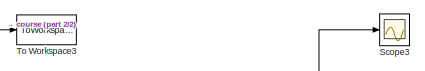
[diagram: root canvas - part 1/2, top center region]
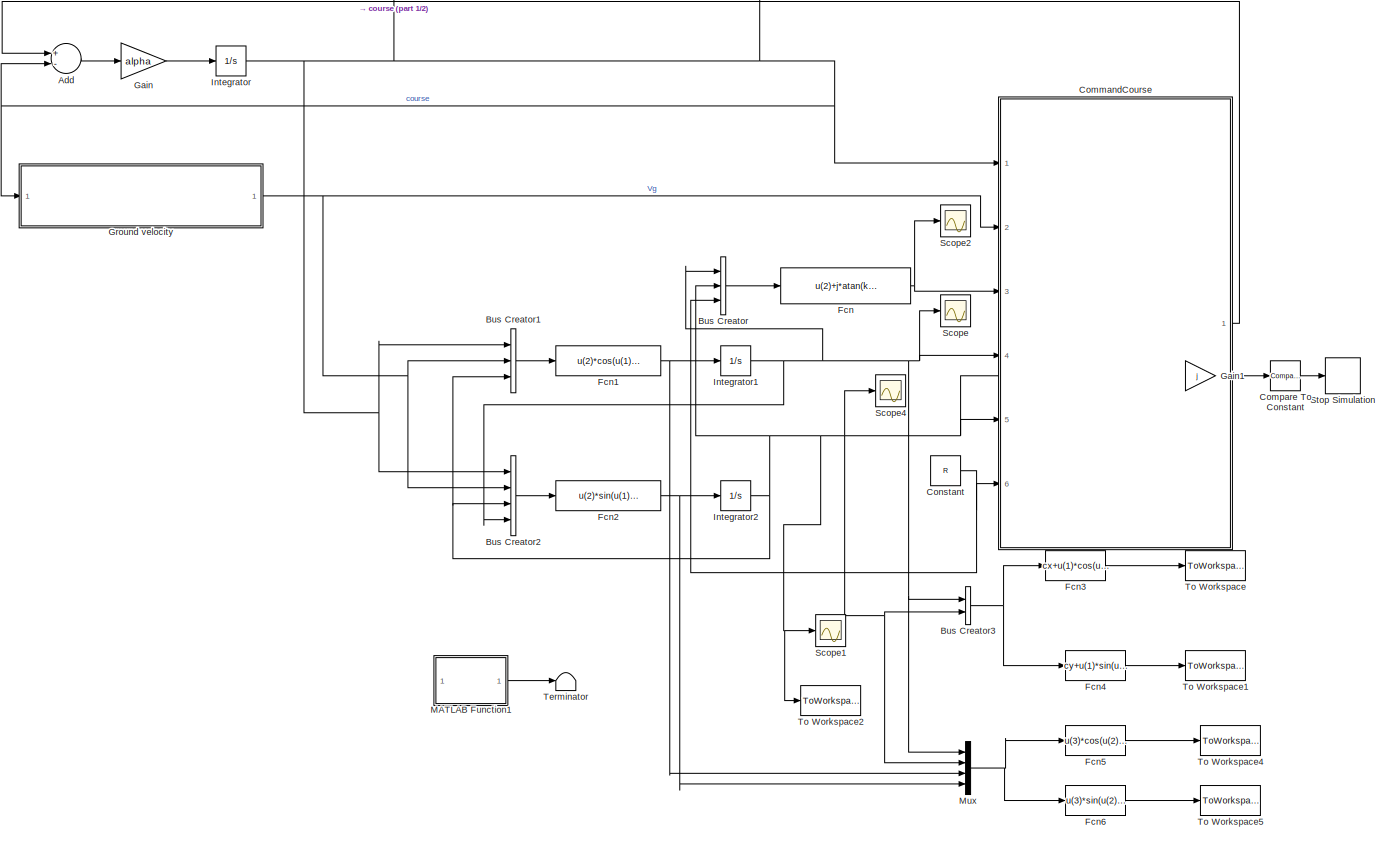
[diagram: root canvas - part 2/2, most of the canvas]
MODEL slx_efd37a24be28
KIND model
CONFIG AbsTol = auto
CONFIG FixedStep = 0.01
CONFIG MaxStep = auto
CONFIG MinStep = auto
CONFIG RelTol = 1e-4
CONFIG SampleTimeConstraint = Unconstrained
CONFIG Solver = VariableStepAuto
CONFIG SolverMode = Auto
CONFIG SolverName = VariableStepAuto
CONFIG StartTime = 0.0
CONFIG StopTime = 1000
BLOCK [Sum] Add
  InputSameDT = off
  Inputs = +-
  OutDataTypeStr = Inherit: Inherit via internal rule
  Ports = [2, 1]
  SaturateOnIntegerOverflow = off
BLOCK [BusCreator] Bus Creator
  DisplayOption = bar
  InheritFromInputs = on
  Inputs = 3
  Ports = [3, 1]
BLOCK [BusCreator] Bus Creator1
  DisplayOption = bar
  InheritFromInputs = on
  Inputs = 3
  Ports = [3, 1]
BLOCK [BusCreator] Bus Creator2
  DisplayOption = bar
  InheritFromInputs = on
  Inputs = 4
  Ports = [4, 1]
BLOCK [BusCreator] Bus Creator3
  DisplayOption = bar
  InheritFromInputs = on
  Inputs = 2
  Ports = [2, 1]
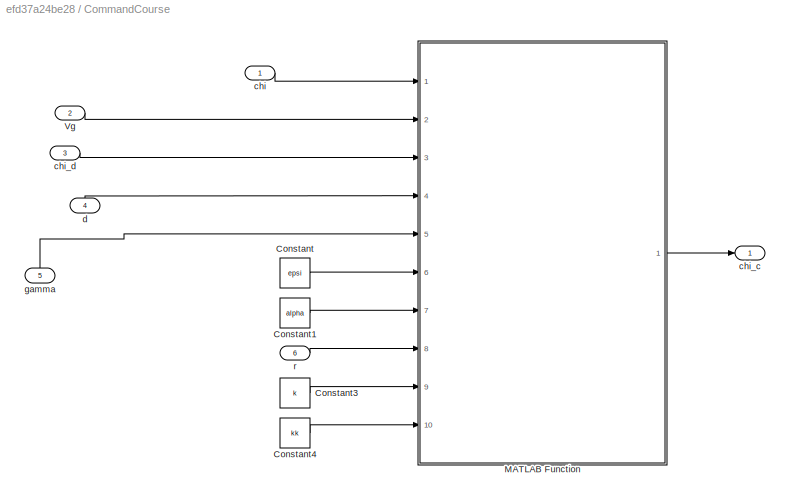
BLOCK [SubSystem] CommandCourse
  Ports = [6, 1]
  RequestExecContextInheritance = off
  Variant = off
BLOCK [Constant] CommandCourse/Constant
  Value = epsi
BLOCK [Constant] CommandCourse/Constant1
  Value = alpha
BLOCK [Constant] CommandCourse/Constant3
  Value = k
BLOCK [Constant] CommandCourse/Constant4
  Value = kk
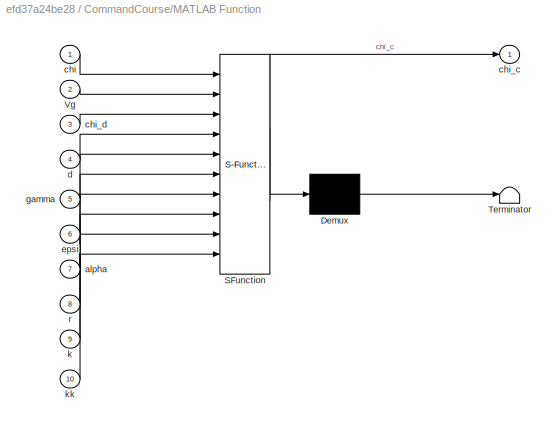
BLOCK [SubSystem] CommandCourse/MATLAB Function
  ErrorFcn = Stateflow.Translate.translate
  PermitHierarchicalResolution = ExplicitOnly
  Ports = [10, 1]
  RequestExecContextInheritance = off
  SFBlockType = MATLAB Function
  TreatAsAtomicUnit = on
  Variant = off
BLOCK [Demux] CommandCourse/MATLAB Function/ Demux 
  Outputs = 1
  Ports = [1, 1]
BLOCK [S-Function] CommandCourse/MATLAB Function/ SFunction 
  EnableBusSupport = on
  FunctionName = sf_sfun
  PortCounts = [10 2]
  Ports = [10, 2]
  SFunctionDeploymentMode = off
  Tag = Stateflow S-Function OrbitFollowing 2
BLOCK [Terminator] CommandCourse/MATLAB Function/ Terminator 
BLOCK [Inport] CommandCourse/MATLAB Function/Vg
  IconDisplay = Port number
  Port = 2
BLOCK [Inport] CommandCourse/MATLAB Function/alpha
  IconDisplay = Port number
  Port = 7
BLOCK [Inport] CommandCourse/MATLAB Function/chi
  IconDisplay = Port number
BLOCK [Outport] CommandCourse/MATLAB Function/chi_c
  IconDisplay = Port number
BLOCK [Inport] CommandCourse/MATLAB Function/chi_d
  IconDisplay = Port number
  Port = 3
BLOCK [Inport] CommandCourse/MATLAB Function/d
  IconDisplay = Port number
  Port = 4
BLOCK [Inport] CommandCourse/MATLAB Function/epsi
  IconDisplay = Port number
  Port = 6
BLOCK [Inport] CommandCourse/MATLAB Function/gamma
  IconDisplay = Port number
  Port = 5
BLOCK [Inport] CommandCourse/MATLAB Function/k
  IconDisplay = Port number
  Port = 9
BLOCK [Inport] CommandCourse/MATLAB Function/kk
  IconDisplay = Port number
  Port = 10
BLOCK [Inport] CommandCourse/MATLAB Function/r
  IconDisplay = Port number
  Port = 8
BLOCK [Inport] CommandCourse/Vg
  IconDisplay = Port number
  Port = 2
BLOCK [Inport] CommandCourse/chi
  IconDisplay = Port number
BLOCK [Outport] CommandCourse/chi_c
  IconDisplay = Port number
BLOCK [Inport] CommandCourse/chi_d
  IconDisplay = Port number
  Port = 3
BLOCK [Inport] CommandCourse/d
  IconDisplay = Port number
  Port = 4
BLOCK [Inport] CommandCourse/gamma
  IconDisplay = Port number
  Port = 5
BLOCK [Inport] CommandCourse/r 
  IconDisplay = Port number
  Port = 6
BLOCK [Reference] Compare To Constant  REF=simulink/Logic and Bit
Operations/Compare
To Constant
  Ports = [1, 1]
  SourceBlock = simulink/Logic and Bit\nOperations/Compare\nTo Constant
  SourceType = Compare To Constant
BLOCK [Constant] Constant
  Value = R
BLOCK [Fcn] Fcn
  Expr = u(2)+j*atan(k*(u(1)-u(3)))+j*pi/2
BLOCK [Fcn] Fcn1
  Expr = u(2)*cos(u(1)-u(3))
BLOCK [Fcn] Fcn2
  Expr = u(2)*sin(u(1)-u(3))/u(4)
BLOCK [Fcn] Fcn3
  Expr = cx+u(1)*cos(u(2))
BLOCK [Fcn] Fcn4
  Expr = cy+u(1)*sin(u(2))
BLOCK [Fcn] Fcn5
  Expr = u(3)*cos(u(2))-u(1)*sin(u(2))*u(4)
BLOCK [Fcn] Fcn6
  Expr = u(3)*sin(u(2))+u(1)*cos(u(2))*u(4)
BLOCK [Gain] Gain
  Gain = alpha
  OutDataTypeStr = Inherit: Inherit via internal rule
  ParamDataTypeStr = Inherit: Inherit via internal rule
  SaturateOnIntegerOverflow = off
BLOCK [Gain] Gain1
  Gain = j
  OutDataTypeStr = Inherit: Inherit via internal rule
  ParamDataTypeStr = Inherit: Inherit via internal rule
  SaturateOnIntegerOverflow = off
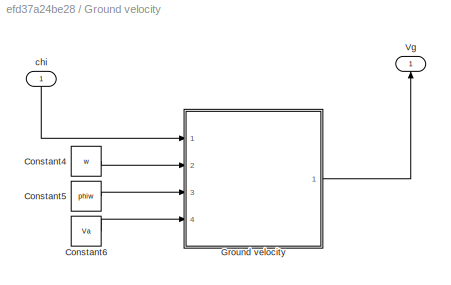
BLOCK [SubSystem] Ground velocity
  Ports = [1, 1]
  RequestExecContextInheritance = off
  Variant = off
BLOCK [Constant] Ground velocity/Constant4
  Value = w
BLOCK [Constant] Ground velocity/Constant5
  Value = phiw
BLOCK [Constant] Ground velocity/Constant6
  Value = Va
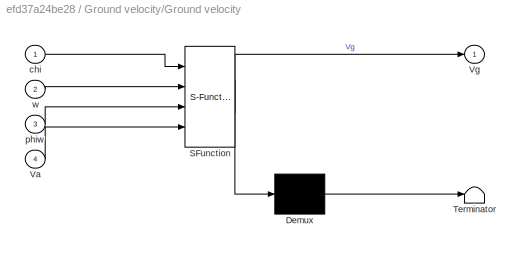
BLOCK [SubSystem] Ground velocity/Ground velocity
  ErrorFcn = Stateflow.Translate.translate
  PermitHierarchicalResolution = ExplicitOnly
  Ports = [4, 1]
  RequestExecContextInheritance = off
  SFBlockType = MATLAB Function
  TreatAsAtomicUnit = on
  Variant = off
BLOCK [Demux] Ground velocity/Ground velocity/ Demux 
  Outputs = 1
  Ports = [1, 1]
BLOCK [S-Function] Ground velocity/Ground velocity/ SFunction 
  EnableBusSupport = on
  FunctionName = sf_sfun
  PortCounts = [4 2]
  Ports = [4, 2]
  SFunctionDeploymentMode = off
  Tag = Stateflow S-Function OrbitFollowing 1
BLOCK [Terminator] Ground velocity/Ground velocity/ Terminator 
BLOCK [Inport] Ground velocity/Ground velocity/Va
  IconDisplay = Port number
  Port = 4
BLOCK [Outport] Ground velocity/Ground velocity/Vg
  IconDisplay = Port number
BLOCK [Inport] Ground velocity/Ground velocity/chi
  IconDisplay = Port number
BLOCK [Inport] Ground velocity/Ground velocity/phiw
  IconDisplay = Port number
  Port = 3
BLOCK [Inport] Ground velocity/Ground velocity/w
  IconDisplay = Port number
  Port = 2
BLOCK [Outport] Ground velocity/Vg
  IconDisplay = Port number
BLOCK [Inport] Ground velocity/chi
  IconDisplay = Port number
BLOCK [Integrator] Integrator
  InitialCondition = course_int
  Ports = [1, 1]
BLOCK [Integrator] Integrator1
  InitialCondition = d_int
  Ports = [1, 1]
BLOCK [Integrator] Integrator2
  InitialCondition = gamma_int
  Ports = [1, 1]
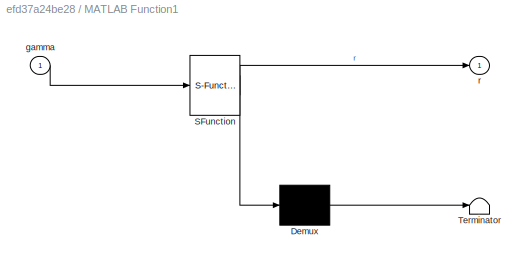
BLOCK [SubSystem] MATLAB Function1
  ErrorFcn = Stateflow.Translate.translate
  PermitHierarchicalResolution = ExplicitOnly
  Ports = [1, 1]
  RequestExecContextInheritance = off
  SFBlockType = MATLAB Function
  TreatAsAtomicUnit = on
  Variant = off
BLOCK [Demux] MATLAB Function1/ Demux 
  Outputs = 1
  Ports = [1, 1]
BLOCK [S-Function] MATLAB Function1/ SFunction 
  EnableBusSupport = on
  FunctionName = sf_sfun
  PortCounts = [1 2]
  Ports = [1, 2]
  SFunctionDeploymentMode = off
  Tag = Stateflow S-Function OrbitFollowing 3
BLOCK [Terminator] MATLAB Function1/ Terminator 
BLOCK [Inport] MATLAB Function1/gamma
  IconDisplay = Port number
BLOCK [Outport] MATLAB Function1/r
  IconDisplay = Port number
BLOCK [Mux] Mux
  DisplayOption = bar
  Ports = [4, 1]
BLOCK [Scope] Scope
  Ports = [1]
  ScopeSpecificationString = Simulink.scopes.TimeScopeBlockCfg('CurrentConfiguration', extmgr.ConfigurationSet(extmgr.Configuration('Core','General UI',true),extmgr.Configuration('Core','Source UI',true),extmgr.Configuration('Sources','WiredSimulink',true),extmgr.Configuration('Visuals','Time Domain',true,'SerializedDisplays',{struct('MinYLimReal','9.06332','MaxYLimReal','18.61545','YLabelReal','','MinYLimMag','9.06332','MaxY...<+1414ch>
BLOCK [Scope] Scope1
  Ports = [1]
  ScopeSpecificationString = Simulink.scopes.TimeScopeBlockCfg('CurrentConfiguration', extmgr.ConfigurationSet(extmgr.Configuration('Core','General UI',true),extmgr.Configuration('Core','Source UI',true),extmgr.Configuration('Sources','WiredSimulink',true,'DataLoggingVariableName','ScopeData1'),extmgr.Configuration('Visuals','Time Domain',true,'SerializedDisplays',{struct('MinYLimReal','-0.57443','MaxYLimReal','5.17547','YLab...<+1421ch>
BLOCK [Scope] Scope2
  Ports = [1]
  ScopeSpecificationString = Simulink.scopes.TimeScopeBlockCfg('CurrentConfiguration', extmgr.ConfigurationSet(extmgr.Configuration('Core','General UI',true),extmgr.Configuration('Core','Source UI',true),extmgr.Configuration('Sources','WiredSimulink',true,'DataLoggingVariableName','ScopeData1'),extmgr.Configuration('Visuals','Time Domain',true,'SerializedDisplays',{struct('MinYLimReal','1.24107','MaxYLimReal','4.32866','YLabe...<+1379ch>
BLOCK [Scope] Scope3
  Ports = [1]
  ScopeSpecificationString = Simulink.scopes.TimeScopeBlockCfg('CurrentConfiguration', extmgr.ConfigurationSet(extmgr.Configuration('Core','General UI',true),extmgr.Configuration('Core','Source UI',true),extmgr.Configuration('Sources','WiredSimulink',true,'DataLoggingVariableName','ScopeData3'),extmgr.Configuration('Visuals','Time Domain',true,'SerializedDisplays',{struct('MinYLimReal','-3.66503','MaxYLimReal','-1.67278','YLa...<+1423ch>
BLOCK [Scope] Scope4
  Ports = [1]
  ScopeSpecificationString = Simulink.scopes.TimeScopeBlockCfg('CurrentConfiguration', extmgr.ConfigurationSet(extmgr.Configuration('Core','General UI',true),extmgr.Configuration('Core','Source UI',true),extmgr.Configuration('Sources','WiredSimulink',true,'DataLoggingVariableName','ScopeData1'),extmgr.Configuration('Visuals','Time Domain',true,'SerializedDisplays',{struct('MinYLimReal','-141.64062','MaxYLimReal','18.11158','Y...<+1434ch>
BLOCK [Stop] Stop Simulation
BLOCK [Terminator] Terminator
BLOCK [ToWorkspace] To Workspace
  FixptAsFi = on
  MaxDataPoints = inf
  Ports = [1]
  SampleTime = -1
  Save2DSignal = 3-D array (concatenate along third dimension)
  SaveFormat = Timeseries
  VariableName = x
BLOCK [ToWorkspace] To Workspace1
  FixptAsFi = on
  MaxDataPoints = inf
  Ports = [1]
  SampleTime = -1
  Save2DSignal = 3-D array (concatenate along third dimension)
  SaveFormat = Timeseries
  VariableName = y
BLOCK [ToWorkspace] To Workspace2
  FixptAsFi = on
  MaxDataPoints = inf
  Ports = [1]
  SampleTime = -1
  Save2DSignal = 3-D array (concatenate along third dimension)
  SaveFormat = Timeseries
  VariableName = gamma
BLOCK [ToWorkspace] To Workspace3
  FixptAsFi = on
  MaxDataPoints = inf
  Ports = [1]
  SampleTime = -1
  Save2DSignal = 3-D array (concatenate along third dimension)
  SaveFormat = Timeseries
  VariableName = course
BLOCK [ToWorkspace] To Workspace4
  FixptAsFi = on
  MaxDataPoints = inf
  Ports = [1]
  SampleTime = -1
  Save2DSignal = 3-D array (concatenate along third dimension)
  SaveFormat = Timeseries
  VariableName = vx
BLOCK [ToWorkspace] To Workspace5
  FixptAsFi = on
  MaxDataPoints = inf
  Ports = [1]
  SampleTime = -1
  Save2DSignal = 3-D array (concatenate along third dimension)
  SaveFormat = Timeseries
  VariableName = vy
LINE Add:1 -> Gain:1
LINE Bus Creator1:1 -> Fcn1:1
LINE Bus Creator2:1 -> Fcn2:1
NET Bus Creator3:1 -> Fcn3:1, Fcn4:1
LINE Bus Creator:1 -> Fcn:1
LINE CommandCourse/Constant1:1 -> CommandCourse/MATLAB Function:7
LINE CommandCourse/Constant3:1 -> CommandCourse/MATLAB Function:9
LINE CommandCourse/Constant4:1 -> CommandCourse/MATLAB Function:10
LINE CommandCourse/Constant:1 -> CommandCourse/MATLAB Function:6
LINE CommandCourse/MATLAB Function:1 -> CommandCourse/chi_c:1
LINE CommandCourse/Vg:1 -> CommandCourse/MATLAB Function:2
LINE CommandCourse/chi:1 -> CommandCourse/MATLAB Function:1
LINE CommandCourse/chi_d:1 -> CommandCourse/MATLAB Function:3
LINE CommandCourse/d:1 -> CommandCourse/MATLAB Function:4
LINE CommandCourse/gamma:1 -> CommandCourse/MATLAB Function:5
LINE CommandCourse/r :1 -> CommandCourse/MATLAB Function:8
LINE CommandCourse:1 -> Add:1
LINE Compare To Constant:1 -> Stop Simulation:1
NET Constant:1 -> Bus Creator:3, CommandCourse:6
NET Fcn1:1 -> Integrator1:1, Mux:3
NET Fcn2:1 -> Integrator2:1, Mux:4
LINE Fcn3:1 -> To Workspace:1
LINE Fcn4:1 -> To Workspace1:1
LINE Fcn5:1 -> To Workspace4:1
LINE Fcn6:1 -> To Workspace5:1
NET Fcn:1 -> CommandCourse:3, Scope2:1
LINE Gain1:1 -> Compare To Constant:1
LINE Gain:1 -> Integrator:1
LINE Ground velocity/Constant4:1 -> Ground velocity/Ground velocity:2
LINE Ground velocity/Constant5:1 -> Ground velocity/Ground velocity:3
LINE Ground velocity/Constant6:1 -> Ground velocity/Ground velocity:4
LINE Ground velocity/Ground velocity:1 -> Ground velocity/Vg:1
LINE Ground velocity/chi:1 -> Ground velocity/Ground velocity:1
NET Ground velocity:1 -> Bus Creator1:2, Bus Creator2:2, CommandCourse:2
NET Integrator1:1 -> Bus Creator2:4, Bus Creator3:1, Bus Creator:1, CommandCourse:4, Mux:1, Scope:1
NET Integrator2:1 -> Bus Creator1:3, Bus Creator2:3, Bus Creator3:2, Bus Creator:2, CommandCourse:5, Gain1:1, Mux:2, Scope1:1, Scope4:1, To Workspace2:1
NET Integrator:1 -> Add:2, Bus Creator1:1, Bus Creator2:1, CommandCourse:1, Ground velocity:1, Scope3:1, To Workspace3:1
LINE MATLAB Function1:1 -> Terminator:1
NET Mux:1 -> Fcn5:1, Fcn6:1
note: NET lines group one-source signal fan-out (src -> all destinations, sorted); 1:1 wires keep LINE
CHART Ground velocity/Ground velocity states=1 transitions=1
  STATE_LABEL 'eML_blk_kernel()'
  STATE_LABEL 'SCRIPT:\nfunction Vg = GroundVelocity(chi,w,phiw,Va)\n%generate the ground velocity based on course angle\nVg=w*cos(chi-phiw)+sqrt(Va^2-w^2*(sin(chi-phiw))^2);\nend'
CHART CommandCourse/MATLAB Function states=1 transitions=1
  STATE_LABEL 'eML_blk_kernel()'
  STATE_LABEL 'SCRIPT:\nfunction chi_c = CommandCourse(chi,Vg,chi_d,d,gamma,epsi,alpha,r,k,kk)\n%generate course angle for orbit following\nsat=(chi-chi_d)/epsi;\nif abs(sat)<=1\n    rho=sat;\nelse\n    rho=sign(sat);\nend\nbeta=k/(1+(k*(d-r))^2);\nchi_c=chi+Vg/alpha/d*sin(chi-gamma)-beta/alpha*Vg*cos(chi-gamma)-kk/alpha*rho;\nend\n\n'
CHART MATLAB Function1 states=1 transitions=1
  STATE_LABEL 'eML_blk_kernel()'
  STATE_LABEL 'SCRIPT:\nfunction r = radius(gamma)\n%#codegen\nif abs(gamma)<=4*pi\n    r=70;\nelse\n    r=50;\nend\nend\n'
